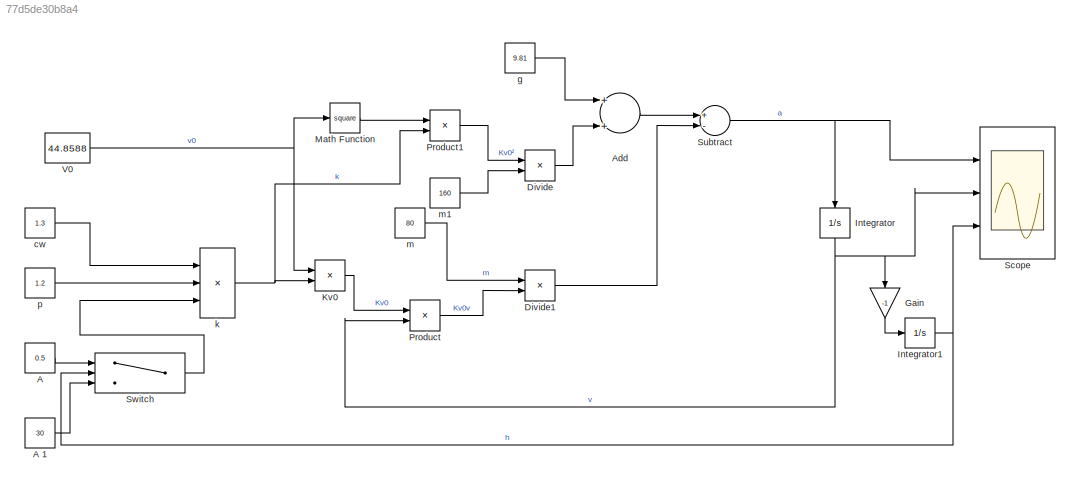
MODEL slx_77d5de30b8a4
KIND model
CONFIG AbsTol = auto
CONFIG FixedStep = auto
CONFIG MaxStep = auto
CONFIG MinStep = auto
CONFIG RelTol = 1e-3
CONFIG SampleTimeConstraint = Unconstrained
CONFIG Solver = ode45
CONFIG SolverMode = Auto
CONFIG SolverName = ode45
CONFIG StartTime = 0.0
CONFIG StopTime = 50
BLOCK [Constant] A 
  Value = 0.5
BLOCK [Constant] A 1
  Value = 30
BLOCK [Sum] Add
  InputSameDT = off
  OutDataTypeStr = Inherit: Inherit via internal rule
  Ports = [2, 1]
  SaturateOnIntegerOverflow = off
BLOCK [Product] Divide
  InputSameDT = off
  Inputs = */
  OutDataTypeStr = Inherit: Inherit via internal rule
  Ports = [2, 1]
  RndMeth = Floor
  SaturateOnIntegerOverflow = off
BLOCK [Product] Divide1
  InputSameDT = off
  Inputs = /*
  OutDataTypeStr = Inherit: Inherit via internal rule
  Ports = [2, 1]
  RndMeth = Floor
  SaturateOnIntegerOverflow = off
BLOCK [Gain] Gain
  Gain = -1
  OutDataTypeStr = Inherit: Inherit via internal rule
  ParamDataTypeStr = Inherit: Inherit via internal rule
  SaturateOnIntegerOverflow = off
BLOCK [Integrator] Integrator
  Ports = [1, 1]
BLOCK [Integrator] Integrator1
  InitialCondition = 3000
  Ports = [1, 1]
BLOCK [Product] Kv0
  InputSameDT = off
  OutDataTypeStr = Inherit: Inherit via internal rule
  Ports = [2, 1]
  RndMeth = Floor
  SaturateOnIntegerOverflow = off
BLOCK [Math] Math Function
  Operator = square
  Ports = [1, 1]
BLOCK [Product] Product
  InputSameDT = off
  OutDataTypeStr = Inherit: Inherit via internal rule
  Ports = [2, 1]
  RndMeth = Floor
  SaturateOnIntegerOverflow = off
BLOCK [Product] Product1
  InputSameDT = off
  OutDataTypeStr = Inherit: Inherit via internal rule
  Ports = [2, 1]
  RndMeth = Floor
  SaturateOnIntegerOverflow = off
BLOCK [Scope] Scope
  Floating = off
  NumInputPorts = 3
  Ports = [3]
  YMax = 5~5~5
  YMin = -5~-5~-5
BLOCK [Sum] Subtract
  InputSameDT = off
  Inputs = +-
  OutDataTypeStr = Inherit: Inherit via internal rule
  Ports = [2, 1]
  SaturateOnIntegerOverflow = off
BLOCK [Switch] Switch
  InputSameDT = off
  SaturateOnIntegerOverflow = off
  Threshold = 1500
BLOCK [Constant] V0 
  Value = 44.8588
BLOCK [Constant] cw 
  Value = 1.3
BLOCK [Constant] g
  Value = 9.81
BLOCK [Product] k
  InputSameDT = off
  Inputs = 3
  OutDataTypeStr = Inherit: Inherit via internal rule
  Ports = [3, 1]
  RndMeth = Floor
  SaturateOnIntegerOverflow = off
BLOCK [Constant] m
  Value = 80
BLOCK [Constant] m1
  Value = 160
BLOCK [Constant] p 
  Value = 1.2
LINE A 1:1 -> Switch:3
LINE A :1 -> Switch:1
LINE Add:1 -> Subtract:1
LINE Divide1:1 -> Subtract:2
LINE Divide:1 -> Add:2
LINE Gain:1 -> Integrator1:1
NET Integrator1:1 -> Scope:3, Switch:2
NET Integrator:1 -> Gain:1, Product:2, Scope:2
LINE Kv0:1 -> Product:1
LINE Math Function:1 -> Product1:1
LINE Product1:1 -> Divide:1
LINE Product:1 -> Divide1:2
NET Subtract:1 -> Integrator:1, Scope:1
LINE Switch:1 -> k:3
NET V0 :1 -> Kv0:1, Math Function:1
LINE cw :1 -> k:1
LINE g:1 -> Add:1
NET k:1 -> Kv0:2, Product1:2
LINE m1:1 -> Divide:2
LINE m:1 -> Divide1:1
LINE p :1 -> k:2
note: NET lines group one-source signal fan-out (src -> all destinations, sorted); 1:1 wires keep LINE
